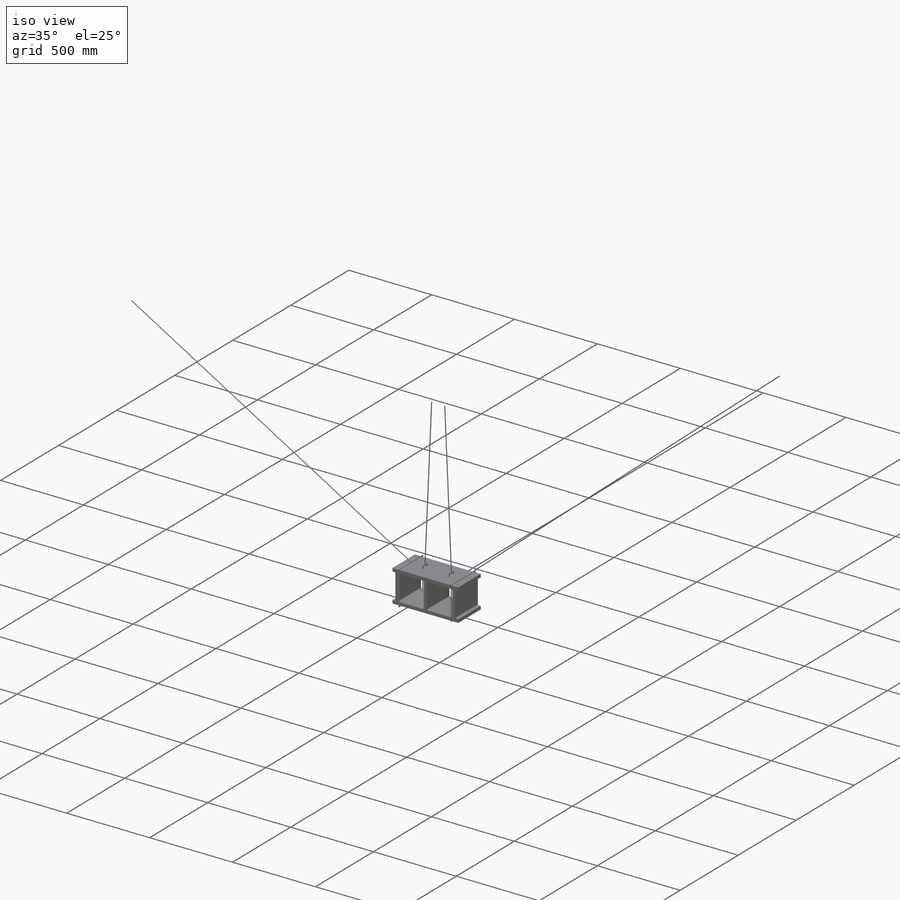
[diagram: iso view]
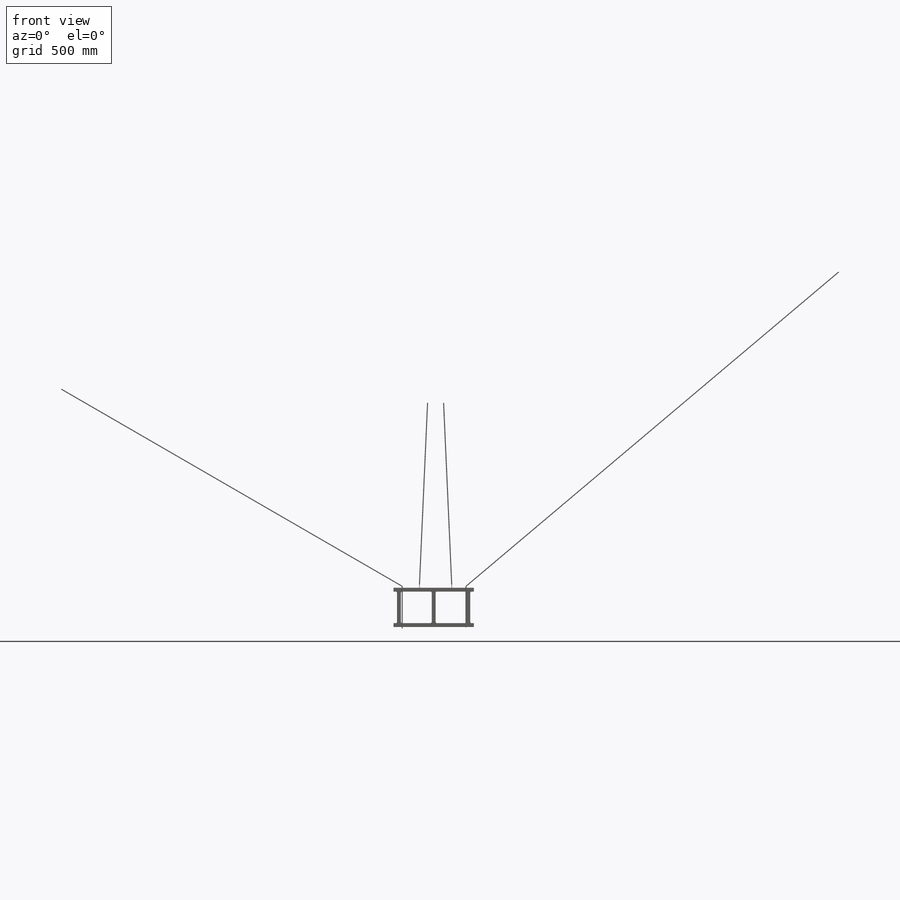
[diagram: front view]
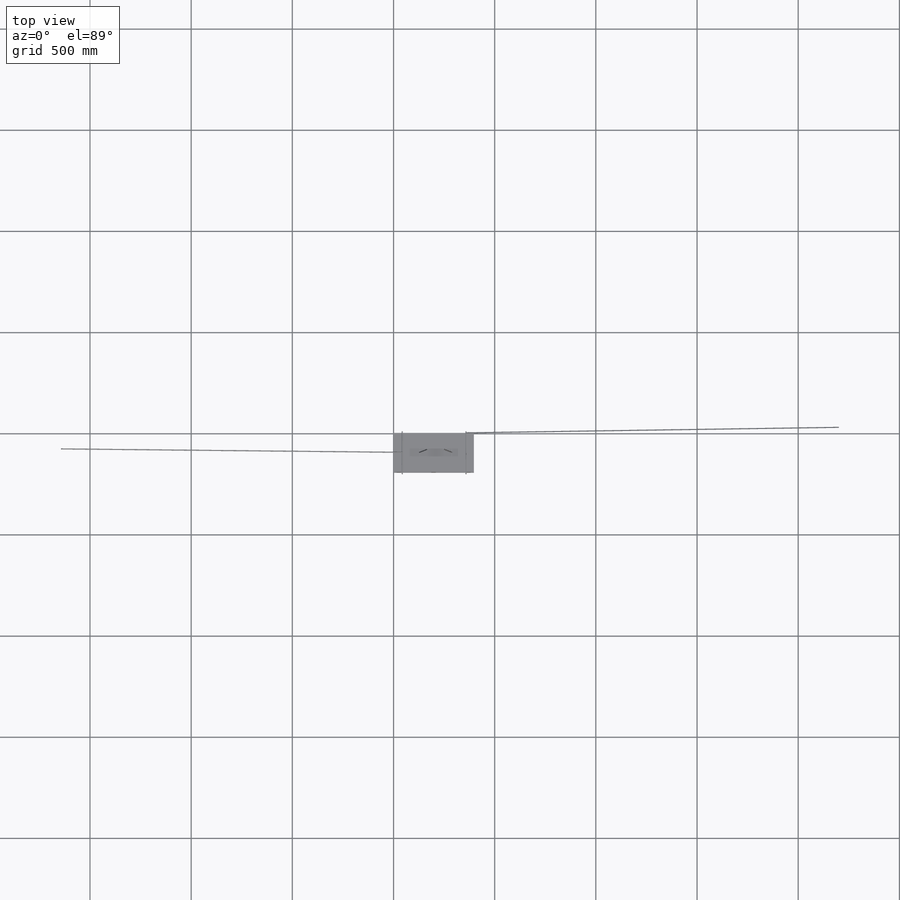
[diagram: top view]
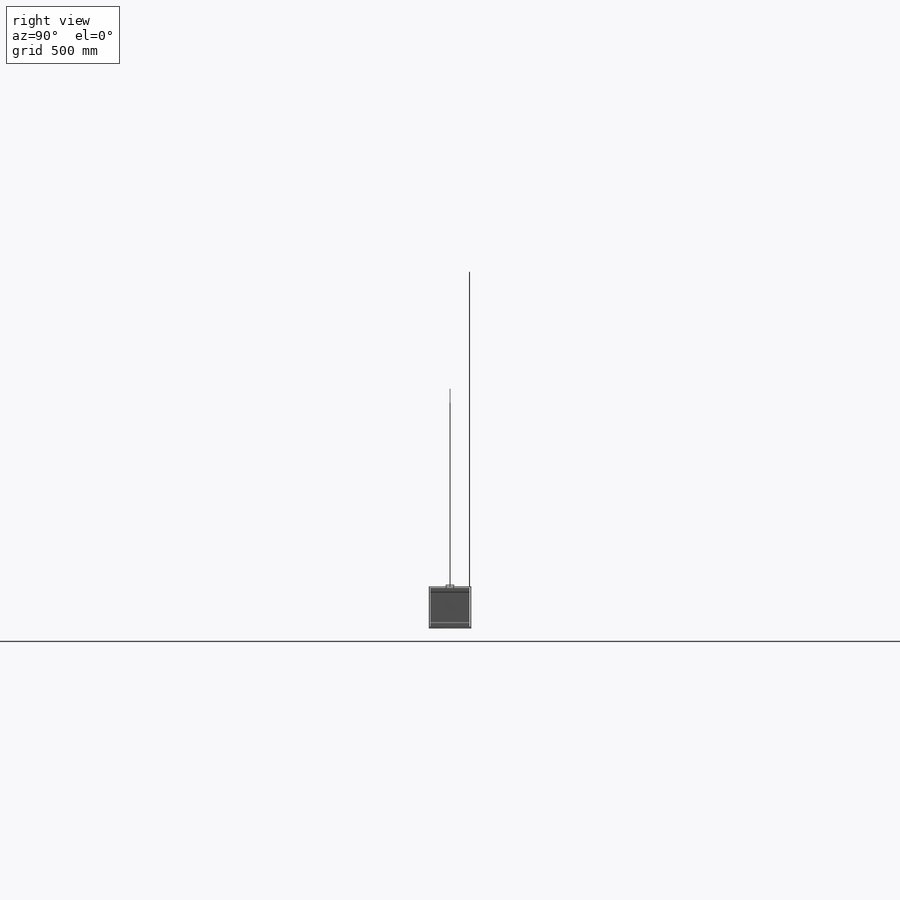
[diagram: right view]
SOLIDWORKS PART (.sldprt)
format: sldprt  version: not decoded by parser v0  size: 361,472 bytes
history: native  units: mm
features: sketch x15, plane x6, sweep x5, extrude x2, cut_extrude x2, mirror x2, material x1 (+12 scaffold rows collapsed)
feature tree (45):
  scaffold x12  (default folders/planes/origin — collapsed)
  material  "Material <não especificado>"
  sketch  "Sketch1"  dims[D1=396.875mm D2=193.675mm]
  extrude  "Extrude1"  Depth=193.675mm
  sketch  "Sketch2"  dims[c1.D4=6.35mm c1.D1=17.4625mm c1.D2=19.05mm c1.D3=19.05mm c2.D4=17.4625mm]
  cut_extrude  "Extrude2"  Depth=193.675mm
  sketch  "Sketch3"  dims[D3=6.35mm D1=9.525mm D2=19.05mm]
  cut_extrude  "Extrude3"  Depth=193.675mm
  plane  "Plano1"  Offset=127mm
  sketch  "Esboço1"
  sketch  "Esboço2"  dims[D1=5.08mm]
  extrude  "Ressalto-extrusão1"  Depth=2.54mm
  mirror  "Espelhar1"
  plane  "Plano2"  Offset=96.52mm
  sketch  "Esboço4"
  sketch  "Esboço5"  dims[D1=5.08mm D2=~74.313033mm]
  sweep  "Varredura3"
  mirror  "Espelhar2"
  plane  "Plano3"  Offset=43.18mm
  sketch  "Esboço6"  dims[D1=5.08mm D2=5.08mm D3=5.08mm]
  sketch  "Esboço8"  dims[D1=5.08mm]
  sweep  "Varredura4"
  sketch  "Esboço9"
  plane  "Plano4"
  sketch  "Esboço10"  dims[D1=5.08mm]
  sweep  "Varredura5"
  plane  "Plano5"  Offset=314.96mm
  sketch  "Esboço12"  dims[D1=2.54mm D2=2.54mm D3=2.54mm D4=2.54mm]
  sketch  "Esboço13"  dims[D1=5.08mm]
  sweep  "Varredura6"
  sketch  "Esboço14"
  plane  "Plano6"
  sketch  "Esboço15"  dims[D1=5.08mm]
  sweep  "Varredura7"
decode coverage: 15 of 26 modeling features carry decoded parameters
note: ~ marks probable driven/reference dimensions
summary: profile_refs inferred from adjacent sketches, not decoded
note: suppression state not decoded; provenance and decode notes live in map.json
